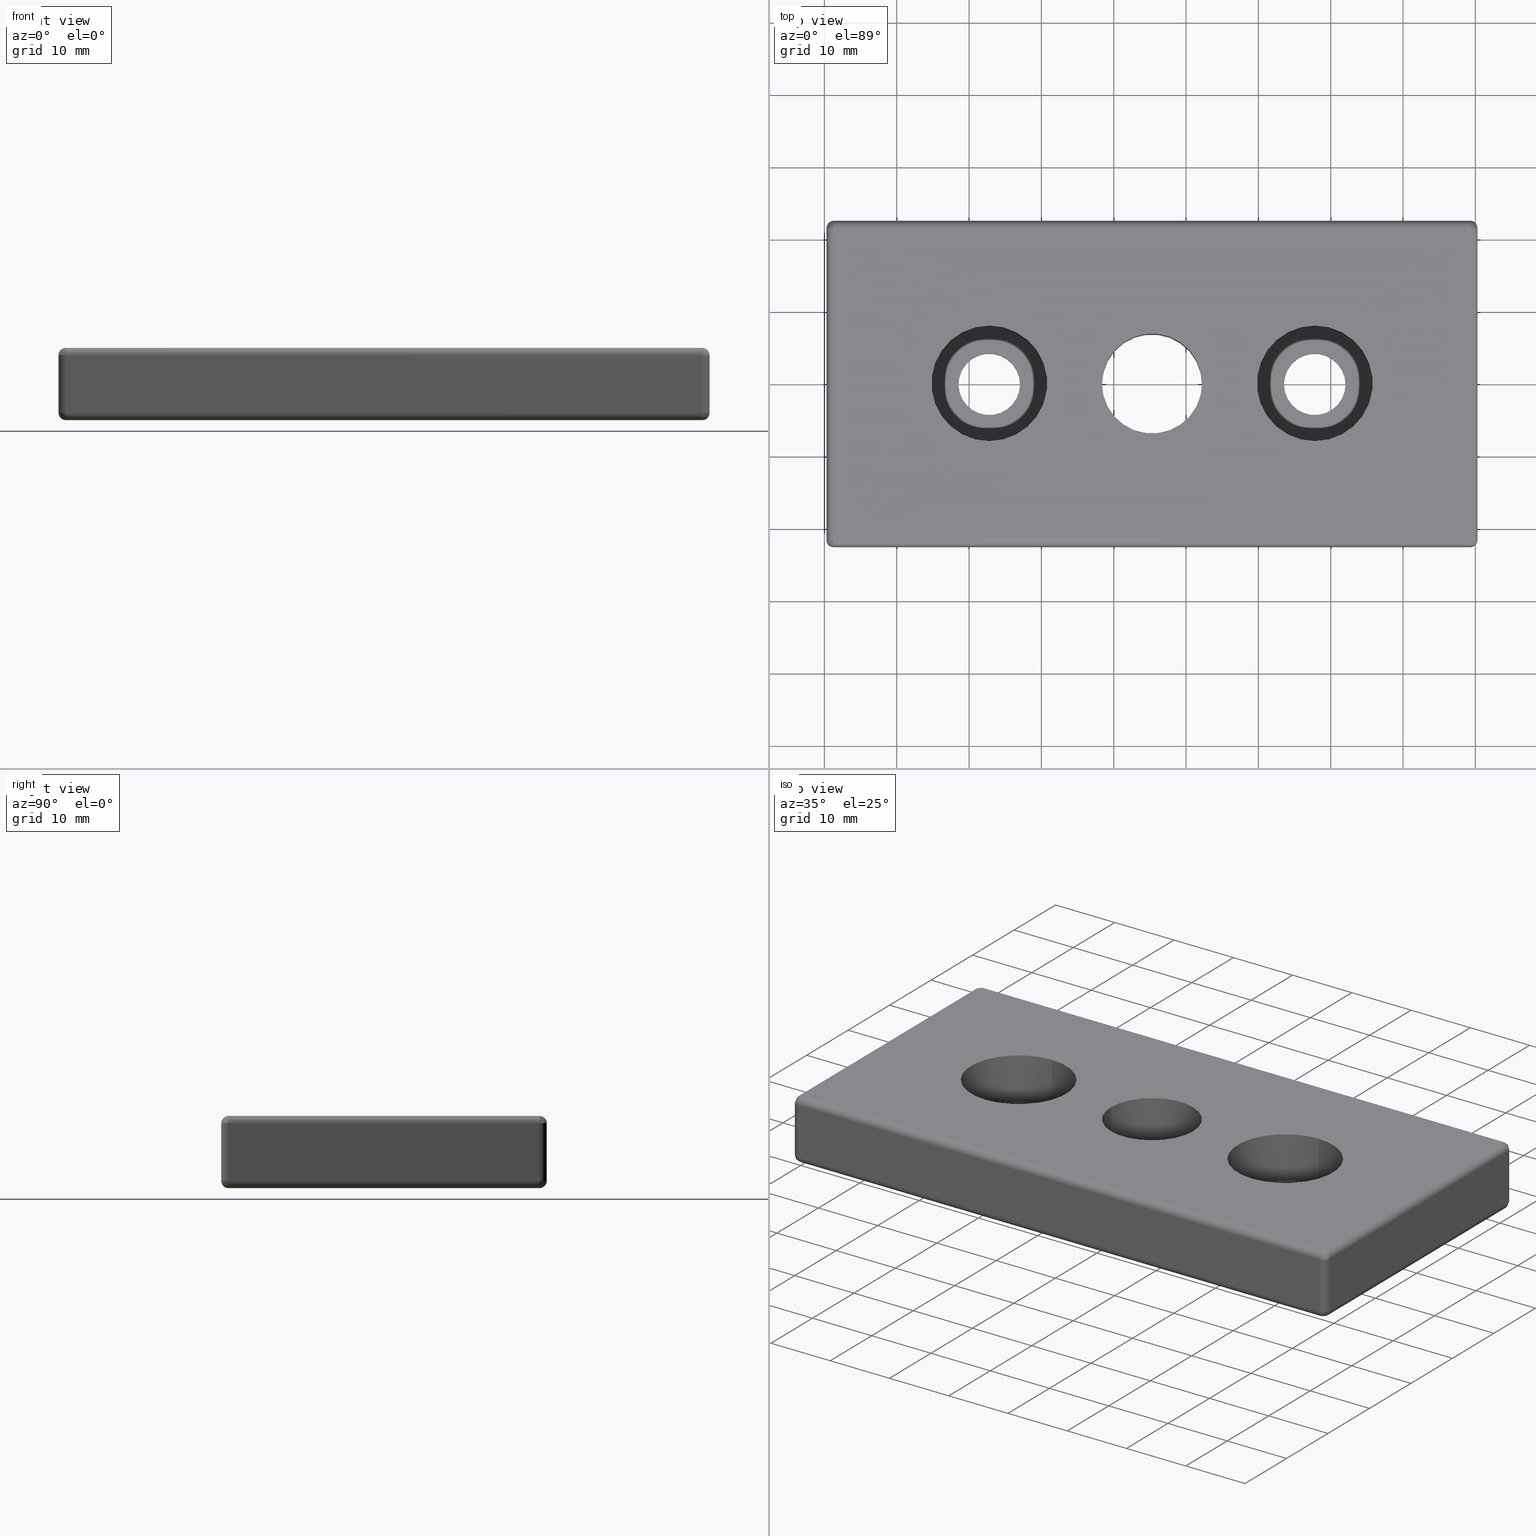
[diagram: canonical four-view strip — front | top / right | iso, engineering-drawing reading convention]
A machine part, canonical four-view strip (front | top / right | iso — engineering-drawing reading convention). The complete STEP part file that produces these views, byte-faithful:
ISO-10303-21;
HEADER;
/****************************************************************
 * Generated by software with PDE/Lib inside                    *
 * PDElib Version v4.4, created Mon 02/23/2004                  *
 * International Technegroup Inc. (www.iti-oh.com)              *
 ****************************************************************/
FILE_DESCRIPTION(('STEP AP203'),'2;1');
FILE_NAME('31.100.00.stp','2011-02-14T10:42:06',(''),(''),'2009.3.110','THINKDESIGN','');
FILE_SCHEMA(('CONFIG_CONTROL_DESIGN'));
ENDSEC;
DATA;
#2=CARTESIAN_POINT('',(-22.207106781186489,0.0,9.707106791186551));
#3=DIRECTION('',(0.0,0.0,-1.0));
#4=DIRECTION('',(-1.0,0.0,0.0));
#5=AXIS2_PLACEMENT_3D('',#2,#3,#4);
#6=CYLINDRICAL_SURFACE('',#5,8.0);
#7=CARTESIAN_POINT('',(-22.207106781186493,7.999999999999993,9.707106781186552));
#8=VERTEX_POINT('',#7);
#9=CARTESIAN_POINT('',(-22.207106781186493,-8.0,9.707106781186552));
#10=VERTEX_POINT('',#9);
#11=CARTESIAN_POINT('',(-22.207106781186493,0.0,9.707106781186552));
#12=DIRECTION('',(0.0,0.0,-1.0));
#13=DIRECTION('',(0.0,-1.0,0.0));
#14=AXIS2_PLACEMENT_3D('',#11,#12,#13);
#15=CIRCLE('',#14,8.0);
#16=EDGE_CURVE('',#8,#10,#15,.T.);
#17=ORIENTED_EDGE('',*,*,#16,.F.);
#18=CARTESIAN_POINT('',(-22.207106781186493,7.999999999999993,2.707106781186552));
#19=VERTEX_POINT('',#18);
#20=CARTESIAN_POINT('',(-22.207106781186493,7.999999999999993,9.707106781186552));
#21=DIRECTION('',(0.0,0.0,-1.0));
#22=VECTOR('',#21,7.0);
#23=LINE('',#20,#22);
#24=EDGE_CURVE('',#8,#19,#23,.T.);
#25=ORIENTED_EDGE('',*,*,#24,.T.);
#26=CARTESIAN_POINT('',(-22.207106781186493,-8.0,2.707106781186552));
#27=VERTEX_POINT('',#26);
#28=CARTESIAN_POINT('',(-22.207106781186493,0.0,2.707106781186552));
#29=DIRECTION('',(0.0,0.0,1.0));
#30=DIRECTION('',(0.0,-1.0,0.0));
#31=AXIS2_PLACEMENT_3D('',#28,#29,#30);
#32=CIRCLE('',#31,8.0);
#33=EDGE_CURVE('',#27,#19,#32,.T.);
#34=ORIENTED_EDGE('',*,*,#33,.F.);
#35=CARTESIAN_POINT('',(-22.207106781186493,-8.0,9.707106781186552));
#36=DIRECTION('',(0.0,0.0,-1.0));
#37=VECTOR('',#36,7.0);
#38=LINE('',#35,#37);
#39=EDGE_CURVE('',#10,#27,#38,.T.);
#40=ORIENTED_EDGE('',*,*,#39,.F.);
#41=EDGE_LOOP('',(#17,#25,#34,#40));
#42=FACE_OUTER_BOUND('',#41,.T.);
#43=ADVANCED_FACE('',(#42),#6,.F.);
#44=CARTESIAN_POINT('',(-22.207106781186489,0.0,-0.292893228813440));
#45=DIRECTION('',(0.0,0.0,1.0));
#46=DIRECTION('',(0.0,1.0,0.0));
#47=AXIS2_PLACEMENT_3D('',#44,#45,#46);
#48=CYLINDRICAL_SURFACE('',#47,4.250000000000000);
#49=CARTESIAN_POINT('',(-17.957106781186489,0.0,-0.292893218813443));
#50=VERTEX_POINT('',#49);
#51=CARTESIAN_POINT('',(-26.457106781186493,0.0,-0.292893218813443));
#52=VERTEX_POINT('',#51);
#53=CARTESIAN_POINT('',(-22.207106781186493,0.0,-0.292893218813443));
#54=DIRECTION('',(0.0,0.0,-1.0));
#55=DIRECTION('',(-1.0,0.0,0.0));
#56=AXIS2_PLACEMENT_3D('',#53,#54,#55);
#57=CIRCLE('',#56,4.250000000000000);
#58=EDGE_CURVE('',#50,#52,#57,.T.);
#59=ORIENTED_EDGE('',*,*,#58,.T.);
#60=CARTESIAN_POINT('',(-26.457106781186493,0.0,2.707106781186546));
#61=VERTEX_POINT('',#60);
#62=CARTESIAN_POINT('',(-26.457106781186493,0.0,-0.292893218813434));
#63=DIRECTION('',(0.0,0.0,1.0));
#64=VECTOR('',#63,2.999999999999981);
#65=LINE('',#62,#64);
#66=EDGE_CURVE('',#52,#61,#65,.T.);
#67=ORIENTED_EDGE('',*,*,#66,.T.);
#68=CARTESIAN_POINT('',(-17.957106781186489,0.0,2.707106781186546));
#69=VERTEX_POINT('',#68);
#70=CARTESIAN_POINT('',(-22.207106781186493,0.0,2.707106781186546));
#71=DIRECTION('',(0.0,0.0,1.0));
#72=DIRECTION('',(-1.0,0.0,0.0));
#73=AXIS2_PLACEMENT_3D('',#70,#71,#72);
#74=CIRCLE('',#73,4.250000000000000);
#75=EDGE_CURVE('',#61,#69,#74,.T.);
#76=ORIENTED_EDGE('',*,*,#75,.T.);
#77=CARTESIAN_POINT('',(-17.957106781186489,0.0,-0.292893218813434));
#78=DIRECTION('',(0.0,0.0,1.0));
#79=VECTOR('',#78,2.999999999999981);
#80=LINE('',#77,#79);
#81=EDGE_CURVE('',#50,#69,#80,.T.);
#82=ORIENTED_EDGE('',*,*,#81,.F.);
#83=EDGE_LOOP('',(#59,#67,#76,#82));
#84=FACE_OUTER_BOUND('',#83,.T.);
#85=ADVANCED_FACE('',(#84),#48,.F.);
#86=CARTESIAN_POINT('',(-67.207106781186496,0.0,9.707106791186551));
#87=DIRECTION('',(0.0,0.0,-1.0));
#88=DIRECTION('',(-1.0,0.0,0.0));
#89=AXIS2_PLACEMENT_3D('',#86,#87,#88);
#90=CYLINDRICAL_SURFACE('',#89,8.0);
#91=CARTESIAN_POINT('',(-67.207106781186496,7.999999999999993,9.707106781186552));
#92=VERTEX_POINT('',#91);
#93=CARTESIAN_POINT('',(-67.207106781186496,-8.0,9.707106781186552));
#94=VERTEX_POINT('',#93);
#95=CARTESIAN_POINT('',(-67.207106781186496,0.0,9.707106781186552));
#96=DIRECTION('',(0.0,0.0,-1.0));
#97=DIRECTION('',(0.0,-1.0,0.0));
#98=AXIS2_PLACEMENT_3D('',#95,#96,#97);
#99=CIRCLE('',#98,8.0);
#100=EDGE_CURVE('',#92,#94,#99,.T.);
#101=ORIENTED_EDGE('',*,*,#100,.F.);
#102=CARTESIAN_POINT('',(-67.207106781186496,7.999999999999993,2.707106781186552));
#103=VERTEX_POINT('',#102);
#104=CARTESIAN_POINT('',(-67.207106781186496,7.999999999999993,9.707106781186552));
#105=DIRECTION('',(0.0,0.0,-1.0));
#106=VECTOR('',#105,7.0);
#107=LINE('',#104,#106);
#108=EDGE_CURVE('',#92,#103,#107,.T.);
#109=ORIENTED_EDGE('',*,*,#108,.T.);
#110=CARTESIAN_POINT('',(-67.207106781186496,-8.0,2.707106781186552));
#111=VERTEX_POINT('',#110);
#112=CARTESIAN_POINT('',(-67.207106781186496,0.0,2.707106781186552));
#113=DIRECTION('',(0.0,0.0,1.0));
#114=DIRECTION('',(0.0,-1.0,0.0));
#115=AXIS2_PLACEMENT_3D('',#112,#113,#114);
#116=CIRCLE('',#115,8.0);
#117=EDGE_CURVE('',#111,#103,#116,.T.);
#118=ORIENTED_EDGE('',*,*,#117,.F.);
#119=CARTESIAN_POINT('',(-67.207106781186496,-8.0,9.707106781186552));
#120=DIRECTION('',(0.0,0.0,-1.0));
#121=VECTOR('',#120,7.0);
#122=LINE('',#119,#121);
#123=EDGE_CURVE('',#94,#111,#122,.T.);
#124=ORIENTED_EDGE('',*,*,#123,.F.);
#125=EDGE_LOOP('',(#101,#109,#118,#124));
#126=FACE_OUTER_BOUND('',#125,.T.);
#127=ADVANCED_FACE('',(#126),#90,.F.);
#128=CARTESIAN_POINT('',(-67.207106781186496,0.0,-0.292893228813440));
#129=DIRECTION('',(0.0,0.0,1.0));
#130=DIRECTION('',(0.0,1.0,0.0));
#131=AXIS2_PLACEMENT_3D('',#128,#129,#130);
#132=CYLINDRICAL_SURFACE('',#131,4.249999999999997);
#133=CARTESIAN_POINT('',(-62.957106781186489,0.0,-0.292893218813443));
#134=VERTEX_POINT('',#133);
#135=CARTESIAN_POINT('',(-71.457106781186496,0.0,-0.292893218813443));
#136=VERTEX_POINT('',#135);
#137=CARTESIAN_POINT('',(-67.207106781186496,0.0,-0.292893218813443));
#138=DIRECTION('',(0.0,0.0,-1.0));
#139=DIRECTION('',(-1.0,0.0,0.0));
#140=AXIS2_PLACEMENT_3D('',#137,#138,#139);
#141=CIRCLE('',#140,4.249999999999997);
#142=EDGE_CURVE('',#134,#136,#141,.T.);
#143=ORIENTED_EDGE('',*,*,#142,.T.);
#144=CARTESIAN_POINT('',(-71.457106781186496,0.0,2.707106781186546));
#145=VERTEX_POINT('',#144);
#146=CARTESIAN_POINT('',(-71.457106781186496,0.0,-0.292893218813434));
#147=DIRECTION('',(0.0,0.0,1.0));
#148=VECTOR('',#147,2.999999999999981);
#149=LINE('',#146,#148);
#150=EDGE_CURVE('',#136,#145,#149,.T.);
#151=ORIENTED_EDGE('',*,*,#150,.T.);
#152=CARTESIAN_POINT('',(-62.957106781186489,0.0,2.707106781186546));
#153=VERTEX_POINT('',#152);
#154=CARTESIAN_POINT('',(-67.207106781186496,0.0,2.707106781186546));
#155=DIRECTION('',(0.0,0.0,1.0));
#156=DIRECTION('',(-1.0,0.0,0.0));
#157=AXIS2_PLACEMENT_3D('',#154,#155,#156);
#158=CIRCLE('',#157,4.249999999999997);
#159=EDGE_CURVE('',#145,#153,#158,.T.);
#160=ORIENTED_EDGE('',*,*,#159,.T.);
#161=CARTESIAN_POINT('',(-62.957106781186489,0.0,-0.292893218813434));
#162=DIRECTION('',(0.0,0.0,1.0));
#163=VECTOR('',#162,2.999999999999981);
#164=LINE('',#161,#163);
#165=EDGE_CURVE('',#134,#153,#164,.T.);
#166=ORIENTED_EDGE('',*,*,#165,.F.);
#167=EDGE_LOOP('',(#143,#151,#160,#166));
#168=FACE_OUTER_BOUND('',#167,.T.);
#169=ADVANCED_FACE('',(#168),#132,.F.);
#170=CARTESIAN_POINT('',(-44.707106781186518,0.0,-0.292893228813440));
#171=DIRECTION('',(0.0,0.0,1.0));
#172=DIRECTION('',(0.0,1.0,0.0));
#173=AXIS2_PLACEMENT_3D('',#170,#171,#172);
#174=CYLINDRICAL_SURFACE('',#173,6.917500000000000);
#175=CARTESIAN_POINT('',(-37.789606781186521,0.0,-0.292893218813443));
#176=VERTEX_POINT('',#175);
#177=CARTESIAN_POINT('',(-51.624606781186515,0.0,-0.292893218813443));
#178=VERTEX_POINT('',#177);
#179=CARTESIAN_POINT('',(-44.707106781186518,0.0,-0.292893218813443));
#180=DIRECTION('',(0.0,0.0,-1.0));
#181=DIRECTION('',(-1.0,0.0,0.0));
#182=AXIS2_PLACEMENT_3D('',#179,#180,#181);
#183=CIRCLE('',#182,6.917500000000000);
#184=EDGE_CURVE('',#176,#178,#183,.T.);
#185=ORIENTED_EDGE('',*,*,#184,.T.);
#186=CARTESIAN_POINT('',(-51.624606781186515,0.0,9.707106781186552));
#187=VERTEX_POINT('',#186);
#188=CARTESIAN_POINT('',(-51.624606781186515,0.0,-0.292893218813449));
#189=DIRECTION('',(0.0,0.0,1.0));
#190=VECTOR('',#189,10.0);
#191=LINE('',#188,#190);
#192=EDGE_CURVE('',#178,#187,#191,.T.);
#193=ORIENTED_EDGE('',*,*,#192,.T.);
#194=CARTESIAN_POINT('',(-37.789606781186521,0.0,9.707106781186552));
#195=VERTEX_POINT('',#194);
#196=CARTESIAN_POINT('',(-44.707106781186518,0.0,9.707106781186552));
#197=DIRECTION('',(0.0,0.0,1.0));
#198=DIRECTION('',(0.0,1.0,0.0));
#199=AXIS2_PLACEMENT_3D('',#196,#197,#198);
#200=CIRCLE('',#199,6.917500000000000);
#201=EDGE_CURVE('',#187,#195,#200,.T.);
#202=ORIENTED_EDGE('',*,*,#201,.T.);
#203=CARTESIAN_POINT('',(-37.789606781186521,0.0,-0.292893218813449));
#204=DIRECTION('',(0.0,0.0,1.0));
#205=VECTOR('',#204,10.0);
#206=LINE('',#203,#205);
#207=EDGE_CURVE('',#176,#195,#206,.T.);
#208=ORIENTED_EDGE('',*,*,#207,.F.);
#209=EDGE_LOOP('',(#185,#193,#202,#208));
#210=FACE_OUTER_BOUND('',#209,.T.);
#211=ADVANCED_FACE('',(#210),#174,.F.);
#212=CARTESIAN_POINT('',(-93.107106781186474,-22.499999999999996,9.107106781186552));
#213=DIRECTION('',(0.0,-1.0,0.0));
#214=DIRECTION('',(0.0,0.0,-1.0));
#215=AXIS2_PLACEMENT_3D('',#212,#213,#214);
#216=PLANE('',#215);
#217=CARTESIAN_POINT('',(-0.707106781186550,-22.499999999999993,8.707106781186552));
#218=VERTEX_POINT('',#217);
#219=CARTESIAN_POINT('',(-88.707106781186482,-22.499999999999993,8.707106781186552));
#220=VERTEX_POINT('',#219);
#221=CARTESIAN_POINT('',(-0.707106781186546,-22.499999999999996,8.707106781186552));
#222=DIRECTION('',(-1.0,0.0,0.0));
#223=VECTOR('',#222,87.999999999999943);
#224=LINE('',#221,#223);
#225=EDGE_CURVE('',#218,#220,#224,.T.);
#226=ORIENTED_EDGE('',*,*,#225,.T.);
#227=CARTESIAN_POINT('',(-88.707106781186482,-22.499999999999993,0.707106781186550));
#228=VERTEX_POINT('',#227);
#229=CARTESIAN_POINT('',(-88.707106781186496,-22.499999999999996,8.707106781186552));
#230=DIRECTION('',(0.0,0.0,-1.0));
#231=VECTOR('',#230,8.000000000000004);
#232=LINE('',#229,#231);
#233=EDGE_CURVE('',#220,#228,#232,.T.);
#234=ORIENTED_EDGE('',*,*,#233,.T.);
#235=CARTESIAN_POINT('',(-0.707106781186546,-22.499999999999993,0.707106781186550));
#236=VERTEX_POINT('',#235);
#237=CARTESIAN_POINT('',(-88.707106781186496,-22.499999999999996,0.707106781186548));
#238=DIRECTION('',(1.0,0.0,0.0));
#239=VECTOR('',#238,87.999999999999943);
#240=LINE('',#237,#239);
#241=EDGE_CURVE('',#228,#236,#240,.T.);
#242=ORIENTED_EDGE('',*,*,#241,.T.);
#243=CARTESIAN_POINT('',(-0.707106781186550,-22.499999999999996,0.707106781186548));
#244=DIRECTION('',(0.0,0.0,1.0));
#245=VECTOR('',#244,8.000000000000004);
#246=LINE('',#243,#245);
#247=EDGE_CURVE('',#236,#218,#246,.T.);
#248=ORIENTED_EDGE('',*,*,#247,.T.);
#249=EDGE_LOOP('',(#226,#234,#242,#248));
#250=FACE_OUTER_BOUND('',#249,.T.);
#251=ADVANCED_FACE('',(#250),#216,.T.);
#252=CARTESIAN_POINT('',(0.292893218813450,-22.499999999999996,-0.292893218813449));
#253=DIRECTION('',(1.0,0.0,0.0));
#254=DIRECTION('',(0.0,1.0,0.0));
#255=AXIS2_PLACEMENT_3D('',#252,#253,#254);
#256=PLANE('',#255);
#257=CARTESIAN_POINT('',(0.292893218813507,21.499999999999993,8.707106781186552));
#258=VERTEX_POINT('',#257);
#259=CARTESIAN_POINT('',(0.292893218813450,-21.499999999999993,8.707106781186552));
#260=VERTEX_POINT('',#259);
#261=CARTESIAN_POINT('',(0.292893218813450,21.499999999999986,8.707106781186552));
#262=DIRECTION('',(0.0,-1.0,0.0));
#263=VECTOR('',#262,42.999999999999979);
#264=LINE('',#261,#263);
#265=EDGE_CURVE('',#258,#260,#264,.T.);
#266=ORIENTED_EDGE('',*,*,#265,.T.);
#267=CARTESIAN_POINT('',(0.292893218813450,-21.499999999999993,0.707106781186548));
#268=VERTEX_POINT('',#267);
#269=CARTESIAN_POINT('',(0.292893218813450,-21.499999999999993,8.707106781186552));
#270=DIRECTION('',(0.0,0.0,-1.0));
#271=VECTOR('',#270,8.000000000000004);
#272=LINE('',#269,#271);
#273=EDGE_CURVE('',#260,#268,#272,.T.);
#274=ORIENTED_EDGE('',*,*,#273,.T.);
#275=CARTESIAN_POINT('',(0.292893218813507,21.499999999999993,0.707106781186548));
#276=VERTEX_POINT('',#275);
#277=CARTESIAN_POINT('',(0.292893218813450,-21.499999999999993,0.707106781186548));
#278=DIRECTION('',(0.0,1.0,0.0));
#279=VECTOR('',#278,42.999999999999986);
#280=LINE('',#277,#279);
#281=EDGE_CURVE('',#268,#276,#280,.T.);
#282=ORIENTED_EDGE('',*,*,#281,.T.);
#283=CARTESIAN_POINT('',(0.292893218813507,21.499999999999993,0.707106781186548));
#284=DIRECTION('',(0.0,0.0,1.0));
#285=VECTOR('',#284,8.000000000000004);
#286=LINE('',#283,#285);
#287=EDGE_CURVE('',#276,#258,#286,.T.);
#288=ORIENTED_EDGE('',*,*,#287,.T.);
#289=EDGE_LOOP('',(#266,#274,#282,#288));
#290=FACE_OUTER_BOUND('',#289,.T.);
#291=ADVANCED_FACE('',(#290),#256,.T.);
#292=CARTESIAN_POINT('',(-93.107106781186502,22.499999999999993,0.307106781186548));
#293=DIRECTION('',(0.0,1.0,0.0));
#294=DIRECTION('',(0.0,0.0,1.0));
#295=AXIS2_PLACEMENT_3D('',#292,#293,#294);
#296=PLANE('',#295);
#297=CARTESIAN_POINT('',(-0.707106781186493,22.499999999999993,0.707106781186550));
#298=VERTEX_POINT('',#297);
#299=CARTESIAN_POINT('',(-88.707106781186482,22.499999999999993,0.707106781186550));
#300=VERTEX_POINT('',#299);
#301=CARTESIAN_POINT('',(-0.707106781186493,22.499999999999993,0.707106781186548));
#302=DIRECTION('',(-1.0,0.0,0.0));
#303=VECTOR('',#302,88.0);
#304=LINE('',#301,#303);
#305=EDGE_CURVE('',#298,#300,#304,.T.);
#306=ORIENTED_EDGE('',*,*,#305,.T.);
#307=CARTESIAN_POINT('',(-88.707106781186482,22.499999999999993,8.707106781186552));
#308=VERTEX_POINT('',#307);
#309=CARTESIAN_POINT('',(-88.707106781186496,22.499999999999993,0.707106781186548));
#310=DIRECTION('',(0.0,0.0,1.0));
#311=VECTOR('',#310,8.000000000000004);
#312=LINE('',#309,#311);
#313=EDGE_CURVE('',#300,#308,#312,.T.);
#314=ORIENTED_EDGE('',*,*,#313,.T.);
#315=CARTESIAN_POINT('',(-0.707106781186493,22.499999999999993,8.707106781186552));
#316=VERTEX_POINT('',#315);
#317=CARTESIAN_POINT('',(-88.707106781186496,22.499999999999993,8.707106781186552));
#318=DIRECTION('',(1.0,0.0,0.0));
#319=VECTOR('',#318,88.0);
#320=LINE('',#317,#319);
#321=EDGE_CURVE('',#308,#316,#320,.T.);
#322=ORIENTED_EDGE('',*,*,#321,.T.);
#323=CARTESIAN_POINT('',(-0.707106781186493,22.499999999999993,8.707106781186552));
#324=DIRECTION('',(0.0,0.0,-1.0));
#325=VECTOR('',#324,8.000000000000004);
#326=LINE('',#323,#325);
#327=EDGE_CURVE('',#316,#298,#326,.T.);
#328=ORIENTED_EDGE('',*,*,#327,.T.);
#329=EDGE_LOOP('',(#306,#314,#322,#328));
#330=FACE_OUTER_BOUND('',#329,.T.);
#331=ADVANCED_FACE('',(#330),#296,.T.);
#332=CARTESIAN_POINT('',(-89.707106781186496,-23.649999999999991,0.307106781186548));
#333=DIRECTION('',(-1.0,0.0,0.0));
#334=DIRECTION('',(0.0,0.0,1.0));
#335=AXIS2_PLACEMENT_3D('',#332,#333,#334);
#336=PLANE('',#335);
#337=CARTESIAN_POINT('',(-89.707106781186496,21.499999999999993,0.707106781186548));
#338=VERTEX_POINT('',#337);
#339=CARTESIAN_POINT('',(-89.707106781186496,-21.499999999999993,0.707106781186548));
#340=VERTEX_POINT('',#339);
#341=CARTESIAN_POINT('',(-89.707106781186496,21.499999999999993,0.707106781186548));
#342=DIRECTION('',(0.0,-1.0,0.0));
#343=VECTOR('',#342,42.999999999999986);
#344=LINE('',#341,#343);
#345=EDGE_CURVE('',#338,#340,#344,.T.);
#346=ORIENTED_EDGE('',*,*,#345,.T.);
#347=CARTESIAN_POINT('',(-89.707106781186496,-21.499999999999993,8.707106781186552));
#348=VERTEX_POINT('',#347);
#349=CARTESIAN_POINT('',(-89.707106781186496,-21.499999999999993,0.707106781186548));
#350=DIRECTION('',(0.0,0.0,1.0));
#351=VECTOR('',#350,8.000000000000004);
#352=LINE('',#349,#351);
#353=EDGE_CURVE('',#340,#348,#352,.T.);
#354=ORIENTED_EDGE('',*,*,#353,.T.);
#355=CARTESIAN_POINT('',(-89.707106781186496,21.499999999999993,8.707106781186552));
#356=VERTEX_POINT('',#355);
#357=CARTESIAN_POINT('',(-89.707106781186496,-21.499999999999993,8.707106781186552));
#358=DIRECTION('',(0.0,1.0,0.0));
#359=VECTOR('',#358,42.999999999999986);
#360=LINE('',#357,#359);
#361=EDGE_CURVE('',#348,#356,#360,.T.);
#362=ORIENTED_EDGE('',*,*,#361,.T.);
#363=CARTESIAN_POINT('',(-89.707106781186496,21.499999999999993,8.707106781186552));
#364=DIRECTION('',(0.0,0.0,-1.0));
#365=VECTOR('',#364,8.000000000000004);
#366=LINE('',#363,#365);
#367=EDGE_CURVE('',#356,#338,#366,.T.);
#368=ORIENTED_EDGE('',*,*,#367,.T.);
#369=EDGE_LOOP('',(#346,#354,#362,#368));
#370=FACE_OUTER_BOUND('',#369,.T.);
#371=ADVANCED_FACE('',(#370),#336,.T.);
#372=CARTESIAN_POINT('',(3.692893218813516,-23.649999999999991,-0.292893218813449));
#373=DIRECTION('',(0.0,0.0,-1.0));
#374=DIRECTION('',(-1.0,0.0,0.0));
#375=AXIS2_PLACEMENT_3D('',#372,#373,#374);
#376=PLANE('',#375);
#377=CARTESIAN_POINT('',(-0.707106781186550,-21.499999999999993,-0.292893218813449));
#378=VERTEX_POINT('',#377);
#379=CARTESIAN_POINT('',(-88.707106781186496,-21.499999999999993,-0.292893218813449));
#380=VERTEX_POINT('',#379);
#381=CARTESIAN_POINT('',(-0.707106781186546,-21.499999999999993,-0.292893218813449));
#382=DIRECTION('',(-1.0,0.0,0.0));
#383=VECTOR('',#382,87.999999999999943);
#384=LINE('',#381,#383);
#385=EDGE_CURVE('',#378,#380,#384,.T.);
#386=ORIENTED_EDGE('',*,*,#385,.T.);
#387=CARTESIAN_POINT('',(-88.707106781186496,21.499999999999993,-0.292893218813449));
#388=VERTEX_POINT('',#387);
#389=CARTESIAN_POINT('',(-88.707106781186496,-21.499999999999993,-0.292893218813449));
#390=DIRECTION('',(0.0,1.0,0.0));
#391=VECTOR('',#390,42.999999999999986);
#392=LINE('',#389,#391);
#393=EDGE_CURVE('',#380,#388,#392,.T.);
#394=ORIENTED_EDGE('',*,*,#393,.T.);
#395=CARTESIAN_POINT('',(-0.707106781186493,21.499999999999993,-0.292893218813449));
#396=VERTEX_POINT('',#395);
#397=CARTESIAN_POINT('',(-88.707106781186496,21.499999999999993,-0.292893218813449));
#398=DIRECTION('',(1.0,0.0,0.0));
#399=VECTOR('',#398,88.0);
#400=LINE('',#397,#399);
#401=EDGE_CURVE('',#388,#396,#400,.T.);
#402=ORIENTED_EDGE('',*,*,#401,.T.);
#403=CARTESIAN_POINT('',(-0.707106781186550,21.499999999999993,-0.292893218813449));
#404=DIRECTION('',(0.0,-1.0,0.0));
#405=VECTOR('',#404,42.999999999999986);
#406=LINE('',#403,#405);
#407=EDGE_CURVE('',#396,#378,#406,.T.);
#408=ORIENTED_EDGE('',*,*,#407,.T.);
#409=EDGE_LOOP('',(#386,#394,#402,#408));
#410=FACE_OUTER_BOUND('',#409,.T.);
#411=ORIENTED_EDGE('',*,*,#58,.F.);
#412=CARTESIAN_POINT('',(-22.207106781186493,0.0,-0.292893218813443));
#413=DIRECTION('',(0.0,0.0,-1.0));
#414=DIRECTION('',(-1.0,0.0,0.0));
#415=AXIS2_PLACEMENT_3D('',#412,#413,#414);
#416=CIRCLE('',#415,4.250000000000000);
#417=EDGE_CURVE('',#52,#50,#416,.T.);
#418=ORIENTED_EDGE('',*,*,#417,.F.);
#419=EDGE_LOOP('',(#411,#418));
#420=FACE_BOUND('',#419,.T.);
#421=ORIENTED_EDGE('',*,*,#142,.F.);
#422=CARTESIAN_POINT('',(-67.207106781186496,0.0,-0.292893218813443));
#423=DIRECTION('',(0.0,0.0,-1.0));
#424=DIRECTION('',(-1.0,0.0,0.0));
#425=AXIS2_PLACEMENT_3D('',#422,#423,#424);
#426=CIRCLE('',#425,4.249999999999997);
#427=EDGE_CURVE('',#136,#134,#426,.T.);
#428=ORIENTED_EDGE('',*,*,#427,.F.);
#429=EDGE_LOOP('',(#421,#428));
#430=FACE_BOUND('',#429,.T.);
#431=ORIENTED_EDGE('',*,*,#184,.F.);
#432=CARTESIAN_POINT('',(-44.707106781186518,0.0,-0.292893218813443));
#433=DIRECTION('',(0.0,0.0,-1.0));
#434=DIRECTION('',(-1.0,0.0,0.0));
#435=AXIS2_PLACEMENT_3D('',#432,#433,#434);
#436=CIRCLE('',#435,6.917500000000000);
#437=EDGE_CURVE('',#178,#176,#436,.T.);
#438=ORIENTED_EDGE('',*,*,#437,.F.);
#439=EDGE_LOOP('',(#431,#438));
#440=FACE_BOUND('',#439,.T.);
#441=ADVANCED_FACE('',(#410,#420,#430,#440),#376,.T.);
#442=CARTESIAN_POINT('',(3.692893218813516,-23.649999999999991,9.707106781186552));
#443=DIRECTION('',(0.0,0.0,-1.0));
#444=DIRECTION('',(-1.0,0.0,0.0));
#445=AXIS2_PLACEMENT_3D('',#442,#443,#444);
#446=PLANE('',#445);
#447=CARTESIAN_POINT('',(-88.707106781186496,21.499999999999993,9.707106781186552));
#448=VERTEX_POINT('',#447);
#449=CARTESIAN_POINT('',(-88.707106781186496,-21.499999999999993,9.707106781186552));
#450=VERTEX_POINT('',#449);
#451=CARTESIAN_POINT('',(-88.707106781186496,21.500000000000000,9.707106781186552));
#452=DIRECTION('',(0.0,-1.0,0.0));
#453=VECTOR('',#452,42.999999999999993);
#454=LINE('',#451,#453);
#455=EDGE_CURVE('',#448,#450,#454,.T.);
#456=ORIENTED_EDGE('',*,*,#455,.T.);
#457=CARTESIAN_POINT('',(-0.707106781186550,-21.499999999999993,9.707106781186552));
#458=VERTEX_POINT('',#457);
#459=CARTESIAN_POINT('',(-88.707106781186496,-21.499999999999993,9.707106781186552));
#460=DIRECTION('',(1.0,0.0,0.0));
#461=VECTOR('',#460,87.999999999999957);
#462=LINE('',#459,#461);
#463=EDGE_CURVE('',#450,#458,#462,.T.);
#464=ORIENTED_EDGE('',*,*,#463,.T.);
#465=CARTESIAN_POINT('',(-0.707106781186493,21.499999999999993,9.707106781186552));
#466=VERTEX_POINT('',#465);
#467=CARTESIAN_POINT('',(-0.707106781186493,-21.499999999999993,9.707106781186552));
#468=DIRECTION('',(0.0,1.0,0.0));
#469=VECTOR('',#468,42.999999999999986);
#470=LINE('',#467,#469);
#471=EDGE_CURVE('',#458,#466,#470,.T.);
#472=ORIENTED_EDGE('',*,*,#471,.T.);
#473=CARTESIAN_POINT('',(-0.707106781186489,21.499999999999993,9.707106781186552));
#474=DIRECTION('',(-1.0,0.0,0.0));
#475=VECTOR('',#474,88.0);
#476=LINE('',#473,#475);
#477=EDGE_CURVE('',#466,#448,#476,.T.);
#478=ORIENTED_EDGE('',*,*,#477,.T.);
#479=EDGE_LOOP('',(#456,#464,#472,#478));
#480=FACE_OUTER_BOUND('',#479,.T.);
#481=CARTESIAN_POINT('',(-22.207106781186493,0.0,9.707106781186552));
#482=DIRECTION('',(0.0,0.0,-1.0));
#483=DIRECTION('',(0.0,-1.0,0.0));
#484=AXIS2_PLACEMENT_3D('',#481,#482,#483);
#485=CIRCLE('',#484,8.0);
#486=EDGE_CURVE('',#10,#8,#485,.T.);
#487=ORIENTED_EDGE('',*,*,#486,.T.);
#488=ORIENTED_EDGE('',*,*,#16,.T.);
#489=EDGE_LOOP('',(#487,#488));
#490=FACE_BOUND('',#489,.T.);
#491=CARTESIAN_POINT('',(-67.207106781186496,0.0,9.707106781186552));
#492=DIRECTION('',(0.0,0.0,-1.0));
#493=DIRECTION('',(0.0,-1.0,0.0));
#494=AXIS2_PLACEMENT_3D('',#491,#492,#493);
#495=CIRCLE('',#494,8.0);
#496=EDGE_CURVE('',#94,#92,#495,.T.);
#497=ORIENTED_EDGE('',*,*,#496,.T.);
#498=ORIENTED_EDGE('',*,*,#100,.T.);
#499=EDGE_LOOP('',(#497,#498));
#500=FACE_BOUND('',#499,.T.);
#501=CARTESIAN_POINT('',(-44.707106781186518,0.0,9.707106781186552));
#502=DIRECTION('',(0.0,0.0,1.0));
#503=DIRECTION('',(0.0,1.0,0.0));
#504=AXIS2_PLACEMENT_3D('',#501,#502,#503);
#505=CIRCLE('',#504,6.917500000000000);
#506=EDGE_CURVE('',#195,#187,#505,.T.);
#507=ORIENTED_EDGE('',*,*,#506,.F.);
#508=ORIENTED_EDGE('',*,*,#201,.F.);
#509=EDGE_LOOP('',(#507,#508));
#510=FACE_BOUND('',#509,.T.);
#511=ADVANCED_FACE('',(#480,#490,#500,#510),#446,.F.);
#512=CARTESIAN_POINT('',(-44.707106781186518,0.0,-0.292893228813440));
#513=DIRECTION('',(0.0,0.0,1.0));
#514=DIRECTION('',(0.0,-1.0,0.0));
#515=AXIS2_PLACEMENT_3D('',#512,#513,#514);
#516=CYLINDRICAL_SURFACE('',#515,6.917500000000000);
#517=ORIENTED_EDGE('',*,*,#192,.F.);
#518=ORIENTED_EDGE('',*,*,#437,.T.);
#519=ORIENTED_EDGE('',*,*,#207,.T.);
#520=ORIENTED_EDGE('',*,*,#506,.T.);
#521=EDGE_LOOP('',(#517,#518,#519,#520));
#522=FACE_OUTER_BOUND('',#521,.T.);
#523=ADVANCED_FACE('',(#522),#516,.F.);
#524=CARTESIAN_POINT('',(-67.207106781186496,0.0,-0.292893228813440));
#525=DIRECTION('',(0.0,0.0,1.0));
#526=DIRECTION('',(0.0,-1.0,0.0));
#527=AXIS2_PLACEMENT_3D('',#524,#525,#526);
#528=CYLINDRICAL_SURFACE('',#527,4.249999999999997);
#529=ORIENTED_EDGE('',*,*,#150,.F.);
#530=ORIENTED_EDGE('',*,*,#427,.T.);
#531=ORIENTED_EDGE('',*,*,#165,.T.);
#532=CARTESIAN_POINT('',(-67.207106781186496,0.0,2.707106781186546));
#533=DIRECTION('',(0.0,0.0,1.0));
#534=DIRECTION('',(-1.0,0.0,0.0));
#535=AXIS2_PLACEMENT_3D('',#532,#533,#534);
#536=CIRCLE('',#535,4.249999999999997);
#537=EDGE_CURVE('',#153,#145,#536,.T.);
#538=ORIENTED_EDGE('',*,*,#537,.T.);
#539=EDGE_LOOP('',(#529,#530,#531,#538));
#540=FACE_OUTER_BOUND('',#539,.T.);
#541=ADVANCED_FACE('',(#540),#528,.F.);
#542=CARTESIAN_POINT('',(-58.407106781186492,-8.800000000000001,2.707106781186552));
#543=DIRECTION('',(0.0,0.0,-1.0));
#544=DIRECTION('',(-1.0,0.0,0.0));
#545=AXIS2_PLACEMENT_3D('',#542,#543,#544);
#546=PLANE('',#545);
#547=ORIENTED_EDGE('',*,*,#117,.T.);
#548=CARTESIAN_POINT('',(-67.207106781186496,0.0,2.707106781186552));
#549=DIRECTION('',(0.0,0.0,1.0));
#550=DIRECTION('',(0.0,-1.0,0.0));
#551=AXIS2_PLACEMENT_3D('',#548,#549,#550);
#552=CIRCLE('',#551,8.0);
#553=EDGE_CURVE('',#103,#111,#552,.T.);
#554=ORIENTED_EDGE('',*,*,#553,.T.);
#555=EDGE_LOOP('',(#547,#554));
#556=FACE_OUTER_BOUND('',#555,.T.);
#557=ORIENTED_EDGE('',*,*,#537,.F.);
#558=ORIENTED_EDGE('',*,*,#159,.F.);
#559=EDGE_LOOP('',(#557,#558));
#560=FACE_BOUND('',#559,.T.);
#561=ADVANCED_FACE('',(#556,#560),#546,.F.);
#562=CARTESIAN_POINT('',(-67.207106781186496,0.0,9.707106791186551));
#563=DIRECTION('',(0.0,0.0,-1.0));
#564=DIRECTION('',(1.0,0.0,0.0));
#565=AXIS2_PLACEMENT_3D('',#562,#563,#564);
#566=CYLINDRICAL_SURFACE('',#565,8.0);
#567=ORIENTED_EDGE('',*,*,#108,.F.);
#568=ORIENTED_EDGE('',*,*,#496,.F.);
#569=ORIENTED_EDGE('',*,*,#123,.T.);
#570=ORIENTED_EDGE('',*,*,#553,.F.);
#571=EDGE_LOOP('',(#567,#568,#569,#570));
#572=FACE_OUTER_BOUND('',#571,.T.);
#573=ADVANCED_FACE('',(#572),#566,.F.);
#574=CARTESIAN_POINT('',(-22.207106781186489,0.0,-0.292893228813440));
#575=DIRECTION('',(0.0,0.0,1.0));
#576=DIRECTION('',(0.0,-1.0,0.0));
#577=AXIS2_PLACEMENT_3D('',#574,#575,#576);
#578=CYLINDRICAL_SURFACE('',#577,4.250000000000000);
#579=ORIENTED_EDGE('',*,*,#66,.F.);
#580=ORIENTED_EDGE('',*,*,#417,.T.);
#581=ORIENTED_EDGE('',*,*,#81,.T.);
#582=CARTESIAN_POINT('',(-22.207106781186493,0.0,2.707106781186546));
#583=DIRECTION('',(0.0,0.0,1.0));
#584=DIRECTION('',(-1.0,0.0,0.0));
#585=AXIS2_PLACEMENT_3D('',#582,#583,#584);
#586=CIRCLE('',#585,4.250000000000000);
#587=EDGE_CURVE('',#69,#61,#586,.T.);
#588=ORIENTED_EDGE('',*,*,#587,.T.);
#589=EDGE_LOOP('',(#579,#580,#581,#588));
#590=FACE_OUTER_BOUND('',#589,.T.);
#591=ADVANCED_FACE('',(#590),#578,.F.);
#592=CARTESIAN_POINT('',(-13.407106781186490,-8.800000000000001,2.707106781186552));
#593=DIRECTION('',(0.0,0.0,-1.0));
#594=DIRECTION('',(-1.0,0.0,0.0));
#595=AXIS2_PLACEMENT_3D('',#592,#593,#594);
#596=PLANE('',#595);
#597=ORIENTED_EDGE('',*,*,#33,.T.);
#598=CARTESIAN_POINT('',(-22.207106781186493,0.0,2.707106781186552));
#599=DIRECTION('',(0.0,0.0,1.0));
#600=DIRECTION('',(0.0,-1.0,0.0));
#601=AXIS2_PLACEMENT_3D('',#598,#599,#600);
#602=CIRCLE('',#601,8.0);
#603=EDGE_CURVE('',#19,#27,#602,.T.);
#604=ORIENTED_EDGE('',*,*,#603,.T.);
#605=EDGE_LOOP('',(#597,#604));
#606=FACE_OUTER_BOUND('',#605,.T.);
#607=ORIENTED_EDGE('',*,*,#587,.F.);
#608=ORIENTED_EDGE('',*,*,#75,.F.);
#609=EDGE_LOOP('',(#607,#608));
#610=FACE_BOUND('',#609,.T.);
#611=ADVANCED_FACE('',(#606,#610),#596,.F.);
#612=CARTESIAN_POINT('',(-22.207106781186489,0.0,9.707106791186551));
#613=DIRECTION('',(0.0,0.0,-1.0));
#614=DIRECTION('',(1.0,0.0,0.0));
#615=AXIS2_PLACEMENT_3D('',#612,#613,#614);
#616=CYLINDRICAL_SURFACE('',#615,8.0);
#617=ORIENTED_EDGE('',*,*,#24,.F.);
#618=ORIENTED_EDGE('',*,*,#486,.F.);
#619=ORIENTED_EDGE('',*,*,#39,.T.);
#620=ORIENTED_EDGE('',*,*,#603,.F.);
#621=EDGE_LOOP('',(#617,#618,#619,#620));
#622=FACE_OUTER_BOUND('',#621,.T.);
#623=ADVANCED_FACE('',(#622),#616,.F.);
#624=CARTESIAN_POINT('',(-0.707106781186493,21.500000000000000,0.707106771186548));
#625=DIRECTION('',(0.0,0.0,1.0));
#626=DIRECTION('',(-0.707106781186547,-0.707106781186548,0.0));
#627=AXIS2_PLACEMENT_3D('',#624,#625,#626);
#628=CYLINDRICAL_SURFACE('',#627,1.000000000000001);
#629=CARTESIAN_POINT('',(-0.707106781186493,21.499999999999993,0.707106781186548));
#630=DIRECTION('',(0.0,0.0,-1.0));
#631=DIRECTION('',(-1.0,0.0,0.0));
#632=AXIS2_PLACEMENT_3D('',#629,#630,#631);
#633=CIRCLE('',#632,1.000000000000001);
#634=EDGE_CURVE('',#298,#276,#633,.T.);
#635=ORIENTED_EDGE('',*,*,#634,.F.);
#636=ORIENTED_EDGE('',*,*,#327,.F.);
#637=CARTESIAN_POINT('',(-0.707106781186493,21.499999999999993,8.707106781186552));
#638=DIRECTION('',(0.0,0.0,1.0));
#639=DIRECTION('',(1.0,0.0,0.0));
#640=AXIS2_PLACEMENT_3D('',#637,#638,#639);
#641=CIRCLE('',#640,1.000000000000001);
#642=EDGE_CURVE('',#258,#316,#641,.T.);
#643=ORIENTED_EDGE('',*,*,#642,.F.);
#644=ORIENTED_EDGE('',*,*,#287,.F.);
#645=EDGE_LOOP('',(#635,#636,#643,#644));
#646=FACE_OUTER_BOUND('',#645,.T.);
#647=ADVANCED_FACE('',(#646),#628,.T.);
#648=CARTESIAN_POINT('',(0.292893218813499,21.499999971715706,0.707106847460719));
#649=CARTESIAN_POINT('',(0.292893246265162,21.499999971715706,0.292893246265114));
#650=CARTESIAN_POINT('',(4.945515E-014,21.499999971715710,2.828430E-016));
#651=CARTESIAN_POINT('',(-0.292893246265064,21.499999971715710,-0.292893246265114));
#652=CARTESIAN_POINT('',(-0.707106847460669,21.499999971715699,-0.292893218813450));
#653=CARTESIAN_POINT('',(0.292893218813500,22.500000028284255,0.707106847460720));
#654=CARTESIAN_POINT('',(0.292893246265163,22.500000028284258,0.292893246265114));
#655=CARTESIAN_POINT('',(5.329071E-014,22.500000028284262,0.0));
#656=CARTESIAN_POINT('',(-0.292893246265063,22.500000028284258,-0.292893246265114));
#657=CARTESIAN_POINT('',(-0.707106847460669,22.500000028284258,-0.292893218813450));
#658=CARTESIAN_POINT('',(-0.707106809470767,22.499999999999989,0.707106781186546));
#659=CARTESIAN_POINT('',(-0.707106809470768,22.499999999999989,0.707106792902276));
#660=CARTESIAN_POINT('',(-0.707106801186496,22.499999999999989,0.707106801186548));
#661=CARTESIAN_POINT('',(-0.707106792902224,22.499999999999993,0.707106809470820));
#662=CARTESIAN_POINT('',(-0.707106781186494,22.499999999999993,0.707106809470819));
#670=(BOUNDED_SURFACE()B_SPLINE_SURFACE(2,2,((#648,#653,#658),(#649,#654,#659),(#650,#655,#660),(#651,#656,#661),(#652,#657,#662)),.UNSPECIFIED.,.F.,.F.,.U.)B_SPLINE_SURFACE_WITH_KNOTS((3,2,3),(3,3),(0.374999990000000,0.500000000000000,0.625000010000000),(0.499999989999995,1.000000010000000),.UNSPECIFIED.)GEOMETRIC_REPRESENTATION_ITEM()RATIONAL_B_SPLINE_SURFACE(((0.853553380593270,0.603553385593275,0.853553400593275),(0.853553368877540,0.603553377309003,0.853553388877545),(0.999999988284266,0.707106775328683,1.000000011715729),(0.853553368877540,0.603553377309002,0.853553388877545),(0.853553380593270,0.603553385593275,0.853553400593275)))REPRESENTATION_ITEM('')SURFACE());
#671=ORIENTED_EDGE('',*,*,#634,.T.);
#672=CARTESIAN_POINT('',(-0.707106781186493,21.499999999999993,0.707106781186548));
#673=DIRECTION('',(0.0,-1.0,0.0));
#674=DIRECTION('',(0.0,0.0,1.0));
#675=AXIS2_PLACEMENT_3D('',#672,#673,#674);
#676=CIRCLE('',#675,1.000000000000001);
#677=EDGE_CURVE('',#396,#276,#676,.T.);
#678=ORIENTED_EDGE('',*,*,#677,.F.);
#679=CARTESIAN_POINT('',(-0.707106781186493,21.499999999999993,0.707106781186548));
#680=DIRECTION('',(-1.0,0.0,0.0));
#681=DIRECTION('',(0.0,0.0,-1.0));
#682=AXIS2_PLACEMENT_3D('',#679,#680,#681);
#683=CIRCLE('',#682,1.000000000000001);
#684=EDGE_CURVE('',#298,#396,#683,.T.);
#685=ORIENTED_EDGE('',*,*,#684,.F.);
#686=EDGE_LOOP('',(#671,#678,#685));
#687=FACE_OUTER_BOUND('',#686,.T.);
#688=ADVANCED_FACE('',(#687),#670,.T.);
#689=CARTESIAN_POINT('',(-0.707106847460670,21.499999971715713,9.707106781186552));
#690=CARTESIAN_POINT('',(-0.292893246265064,21.499999971715710,9.707106808638214));
#691=CARTESIAN_POINT('',(4.945515E-014,21.499999971715706,9.414213562373099));
#692=CARTESIAN_POINT('',(0.292893246265162,21.499999971715710,9.121320316107987));
#693=CARTESIAN_POINT('',(0.292893218813499,21.499999971715713,8.707106714912385));
#694=CARTESIAN_POINT('',(-0.707106847460670,22.500000028284258,9.707106781186550));
#695=CARTESIAN_POINT('',(-0.292893246265063,22.500000028284258,9.707106808638214));
#696=CARTESIAN_POINT('',(5.329071E-014,22.500000028284262,9.414213562373099));
#697=CARTESIAN_POINT('',(0.292893246265163,22.500000028284258,9.121320316107987));
#698=CARTESIAN_POINT('',(0.292893218813500,22.500000028284255,8.707106714912380));
#699=CARTESIAN_POINT('',(-0.707106781186494,22.499999999999989,8.707106752902279));
#700=CARTESIAN_POINT('',(-0.707106792902224,22.499999999999989,8.707106752902277));
#701=CARTESIAN_POINT('',(-0.707106801186496,22.499999999999989,8.707106761186550));
#702=CARTESIAN_POINT('',(-0.707106809470768,22.499999999999989,8.707106769470823));
#703=CARTESIAN_POINT('',(-0.707106809470767,22.499999999999993,8.707106781186553));
#711=(BOUNDED_SURFACE()B_SPLINE_SURFACE(2,2,((#689,#694,#699),(#690,#695,#700),(#691,#696,#701),(#692,#697,#702),(#693,#698,#703)),.UNSPECIFIED.,.F.,.F.,.U.)B_SPLINE_SURFACE_WITH_KNOTS((3,2,3),(3,3),(0.374999990000000,0.500000000000000,0.625000010000000),(0.499999989999995,1.000000010000000),.UNSPECIFIED.)GEOMETRIC_REPRESENTATION_ITEM()RATIONAL_B_SPLINE_SURFACE(((0.853553380593269,0.603553385593275,0.853553400593275),(0.853553368877539,0.603553377309002,0.853553388877545),(0.999999988284265,0.707106775328683,1.000000011715729),(0.853553368877540,0.603553377309003,0.853553388877545),(0.853553380593269,0.603553385593275,0.853553400593275)))REPRESENTATION_ITEM('')SURFACE());
#712=CARTESIAN_POINT('',(-0.707106781186493,21.499999999999993,8.707106781186552));
#713=DIRECTION('',(-1.0,0.0,0.0));
#714=DIRECTION('',(0.0,0.0,-1.0));
#715=AXIS2_PLACEMENT_3D('',#712,#713,#714);
#716=CIRCLE('',#715,1.0);
#717=EDGE_CURVE('',#466,#316,#716,.T.);
#718=ORIENTED_EDGE('',*,*,#717,.F.);
#719=CARTESIAN_POINT('',(-0.707106781186493,21.499999999999993,8.707106781186552));
#720=DIRECTION('',(0.0,-1.0,0.0));
#721=DIRECTION('',(0.0,0.0,1.0));
#722=AXIS2_PLACEMENT_3D('',#719,#720,#721);
#723=CIRCLE('',#722,1.0);
#724=EDGE_CURVE('',#258,#466,#723,.T.);
#725=ORIENTED_EDGE('',*,*,#724,.F.);
#726=ORIENTED_EDGE('',*,*,#642,.T.);
#727=EDGE_LOOP('',(#718,#725,#726));
#728=FACE_OUTER_BOUND('',#727,.T.);
#729=ADVANCED_FACE('',(#728),#711,.T.);
#730=CARTESIAN_POINT('',(-0.707106781186550,-21.500000009999994,0.707106781186548));
#731=DIRECTION('',(0.0,1.0,0.0));
#732=DIRECTION('',(-1.0,0.0,0.0));
#733=AXIS2_PLACEMENT_3D('',#730,#731,#732);
#734=CYLINDRICAL_SURFACE('',#733,1.000000000000001);
#735=ORIENTED_EDGE('',*,*,#677,.T.);
#736=ORIENTED_EDGE('',*,*,#281,.F.);
#737=CARTESIAN_POINT('',(-0.707106781186550,-21.499999999999993,0.707106781186548));
#738=DIRECTION('',(0.0,-1.0,0.0));
#739=DIRECTION('',(0.0,0.0,-1.0));
#740=AXIS2_PLACEMENT_3D('',#737,#738,#739);
#741=CIRCLE('',#740,1.000000000000001);
#742=EDGE_CURVE('',#378,#268,#741,.T.);
#743=ORIENTED_EDGE('',*,*,#742,.F.);
#744=ORIENTED_EDGE('',*,*,#407,.F.);
#745=EDGE_LOOP('',(#735,#736,#743,#744));
#746=FACE_OUTER_BOUND('',#745,.T.);
#747=ADVANCED_FACE('',(#746),#734,.T.);
#748=CARTESIAN_POINT('',(-0.707106771186489,21.499999999999993,0.707106781186548));
#749=DIRECTION('',(-1.0,0.0,0.0));
#750=DIRECTION('',(0.0,0.0,1.0));
#751=AXIS2_PLACEMENT_3D('',#748,#749,#750);
#752=CYLINDRICAL_SURFACE('',#751,1.000000000000001);
#753=ORIENTED_EDGE('',*,*,#684,.T.);
#754=ORIENTED_EDGE('',*,*,#401,.F.);
#755=CARTESIAN_POINT('',(-88.707106781186496,21.499999999999993,0.707106781186548));
#756=DIRECTION('',(-1.0,0.0,0.0));
#757=DIRECTION('',(0.0,0.0,1.0));
#758=AXIS2_PLACEMENT_3D('',#755,#756,#757);
#759=CIRCLE('',#758,1.000000000000001);
#760=EDGE_CURVE('',#300,#388,#759,.T.);
#761=ORIENTED_EDGE('',*,*,#760,.F.);
#762=ORIENTED_EDGE('',*,*,#305,.F.);
#763=EDGE_LOOP('',(#753,#754,#761,#762));
#764=FACE_OUTER_BOUND('',#763,.T.);
#765=ADVANCED_FACE('',(#764),#752,.T.);
#766=CARTESIAN_POINT('',(-88.707106781186496,21.499999999999993,0.707106771186548));
#767=DIRECTION('',(0.0,0.0,1.0));
#768=DIRECTION('',(1.0,0.0,0.0));
#769=AXIS2_PLACEMENT_3D('',#766,#767,#768);
#770=CYLINDRICAL_SURFACE('',#769,1.000000000000001);
#771=CARTESIAN_POINT('',(-88.707106781186496,21.499999999999993,8.707106781186552));
#772=DIRECTION('',(0.0,0.0,1.0));
#773=DIRECTION('',(1.0,0.0,0.0));
#774=AXIS2_PLACEMENT_3D('',#771,#772,#773);
#775=CIRCLE('',#774,1.000000000000001);
#776=EDGE_CURVE('',#308,#356,#775,.T.);
#777=ORIENTED_EDGE('',*,*,#776,.F.);
#778=ORIENTED_EDGE('',*,*,#313,.F.);
#779=CARTESIAN_POINT('',(-88.707106781186496,21.499999999999993,0.707106781186548));
#780=DIRECTION('',(0.0,0.0,-1.0));
#781=DIRECTION('',(-1.0,0.0,0.0));
#782=AXIS2_PLACEMENT_3D('',#779,#780,#781);
#783=CIRCLE('',#782,1.000000000000001);
#784=EDGE_CURVE('',#338,#300,#783,.T.);
#785=ORIENTED_EDGE('',*,*,#784,.F.);
#786=ORIENTED_EDGE('',*,*,#367,.F.);
#787=EDGE_LOOP('',(#777,#778,#785,#786));
#788=FACE_OUTER_BOUND('',#787,.T.);
#789=ADVANCED_FACE('',(#788),#770,.T.);
#790=CARTESIAN_POINT('',(-88.707106791186490,21.499999999999993,8.707106781186552));
#791=DIRECTION('',(1.0,0.0,0.0));
#792=DIRECTION('',(0.0,0.0,-1.0));
#793=AXIS2_PLACEMENT_3D('',#790,#791,#792);
#794=CYLINDRICAL_SURFACE('',#793,1.0);
#795=ORIENTED_EDGE('',*,*,#717,.T.);
#796=ORIENTED_EDGE('',*,*,#321,.F.);
#797=CARTESIAN_POINT('',(-88.707106781186496,21.499999999999993,8.707106781186552));
#798=DIRECTION('',(-1.0,0.0,0.0));
#799=DIRECTION('',(0.0,0.0,1.0));
#800=AXIS2_PLACEMENT_3D('',#797,#798,#799);
#801=CIRCLE('',#800,1.0);
#802=EDGE_CURVE('',#448,#308,#801,.T.);
#803=ORIENTED_EDGE('',*,*,#802,.F.);
#804=ORIENTED_EDGE('',*,*,#477,.F.);
#805=EDGE_LOOP('',(#795,#796,#803,#804));
#806=FACE_OUTER_BOUND('',#805,.T.);
#807=ADVANCED_FACE('',(#806),#794,.T.);
#808=CARTESIAN_POINT('',(-0.707106781186553,21.500000009999994,8.707106781186552));
#809=DIRECTION('',(0.0,-1.0,0.0));
#810=DIRECTION('',(-0.707106781186547,0.0,-0.707106781186548));
#811=AXIS2_PLACEMENT_3D('',#808,#809,#810);
#812=CYLINDRICAL_SURFACE('',#811,1.000000000000001);
#813=ORIENTED_EDGE('',*,*,#724,.T.);
#814=ORIENTED_EDGE('',*,*,#471,.F.);
#815=CARTESIAN_POINT('',(-0.707106781186550,-21.499999999999993,8.707106781186552));
#816=DIRECTION('',(0.0,-1.0,0.0));
#817=DIRECTION('',(0.0,0.0,-1.0));
#818=AXIS2_PLACEMENT_3D('',#815,#816,#817);
#819=CIRCLE('',#818,1.0);
#820=EDGE_CURVE('',#260,#458,#819,.T.);
#821=ORIENTED_EDGE('',*,*,#820,.F.);
#822=ORIENTED_EDGE('',*,*,#265,.F.);
#823=EDGE_LOOP('',(#813,#814,#821,#822));
#824=FACE_OUTER_BOUND('',#823,.T.);
#825=ADVANCED_FACE('',(#824),#812,.T.);
#826=CARTESIAN_POINT('',(-0.707106781186550,-21.499999999999993,0.707106771186548));
#827=DIRECTION('',(0.0,0.0,1.0));
#828=DIRECTION('',(-0.707106781186547,0.707106781186548,0.0));
#829=AXIS2_PLACEMENT_3D('',#826,#827,#828);
#830=CYLINDRICAL_SURFACE('',#829,1.000000000000001);
#831=CARTESIAN_POINT('',(-0.707106781186550,-21.499999999999993,0.707106781186548));
#832=DIRECTION('',(0.0,0.0,-1.0));
#833=DIRECTION('',(-1.0,0.0,0.0));
#834=AXIS2_PLACEMENT_3D('',#831,#832,#833);
#835=CIRCLE('',#834,1.000000000000001);
#836=EDGE_CURVE('',#268,#236,#835,.T.);
#837=ORIENTED_EDGE('',*,*,#836,.F.);
#838=ORIENTED_EDGE('',*,*,#273,.F.);
#839=CARTESIAN_POINT('',(-0.707106781186550,-21.499999999999993,8.707106781186552));
#840=DIRECTION('',(0.0,0.0,1.0));
#841=DIRECTION('',(1.0,0.0,0.0));
#842=AXIS2_PLACEMENT_3D('',#839,#840,#841);
#843=CIRCLE('',#842,1.000000000000001);
#844=EDGE_CURVE('',#218,#260,#843,.T.);
#845=ORIENTED_EDGE('',*,*,#844,.F.);
#846=ORIENTED_EDGE('',*,*,#247,.F.);
#847=EDGE_LOOP('',(#837,#838,#845,#846));
#848=FACE_OUTER_BOUND('',#847,.T.);
#849=ADVANCED_FACE('',(#848),#830,.T.);
#850=CARTESIAN_POINT('',(-0.707106809470822,-22.499999999999986,0.707106781186546));
#851=CARTESIAN_POINT('',(-0.707106809470823,-22.499999999999986,0.707106792902276));
#852=CARTESIAN_POINT('',(-0.707106801186553,-22.499999999999986,0.707106801186548));
#853=CARTESIAN_POINT('',(-0.707106792902280,-22.499999999999989,0.707106809470820));
#854=CARTESIAN_POINT('',(-0.707106781186550,-22.499999999999986,0.707106809470819));
#855=CARTESIAN_POINT('',(0.292893218813441,-22.500000028284258,0.707106847460721));
#856=CARTESIAN_POINT('',(0.292893246265105,-22.500000028284258,0.292893246265115));
#857=CARTESIAN_POINT('',(-7.105427E-015,-22.500000028284262,0.0));
#858=CARTESIAN_POINT('',(-0.292893246265143,-22.500000028284262,-0.292893246265137));
#859=CARTESIAN_POINT('',(-0.707106847460780,-22.500000028284258,-0.292893218813450));
#860=CARTESIAN_POINT('',(0.292893218813442,-21.499999971715720,0.707106847460720));
#861=CARTESIAN_POINT('',(0.292893246265106,-21.499999971715717,0.292893246265114));
#862=CARTESIAN_POINT('',(-7.388270E-015,-21.499999971715724,2.828427E-016));
#863=CARTESIAN_POINT('',(-0.292893246265142,-21.499999971715724,-0.292893246265136));
#864=CARTESIAN_POINT('',(-0.707106847460779,-21.499999971715727,-0.292893218813450));
#872=(BOUNDED_SURFACE()B_SPLINE_SURFACE(2,2,((#850,#855,#860),(#851,#856,#861),(#852,#857,#862),(#853,#858,#863),(#854,#859,#864)),.UNSPECIFIED.,.F.,.F.,.U.)B_SPLINE_SURFACE_WITH_KNOTS((3,2,3),(3,3),(0.374999990000000,0.500000000000000,0.625000010000009),(-1.000000E-008,0.500000010000000),.UNSPECIFIED.)GEOMETRIC_REPRESENTATION_ITEM()RATIONAL_B_SPLINE_SURFACE(((0.853553400593275,0.603553385593275,0.853553380593275),(0.853553388877545,0.603553377309002,0.853553368877545),(1.000000011715729,0.707106775328683,0.999999988284272),(0.853553388877535,0.603553377308996,0.853553368877535),(0.853553400593275,0.603553385593275,0.853553380593275)))REPRESENTATION_ITEM('')SURFACE());
#873=CARTESIAN_POINT('',(-0.707106781186550,-21.499999999999993,0.707106781186548));
#874=DIRECTION('',(-1.0,0.0,0.0));
#875=DIRECTION('',(0.0,0.0,-1.0));
#876=AXIS2_PLACEMENT_3D('',#873,#874,#875);
#877=CIRCLE('',#876,1.000000000000001);
#878=EDGE_CURVE('',#378,#236,#877,.T.);
#879=ORIENTED_EDGE('',*,*,#878,.F.);
#880=ORIENTED_EDGE('',*,*,#742,.T.);
#881=ORIENTED_EDGE('',*,*,#836,.T.);
#882=EDGE_LOOP('',(#879,#880,#881));
#883=FACE_OUTER_BOUND('',#882,.T.);
#884=ADVANCED_FACE('',(#883),#872,.T.);
#885=CARTESIAN_POINT('',(-88.707106724617958,21.499999971715724,-0.292893218813450));
#886=CARTESIAN_POINT('',(-89.707106781186482,21.499999971715717,-0.292893218813452));
#887=CARTESIAN_POINT('',(-89.707106781186511,21.499999971715720,0.707106837755091));
#888=CARTESIAN_POINT('',(-88.707106724617944,22.500000028284262,-0.292893218813451));
#889=CARTESIAN_POINT('',(-89.707106781186468,22.500000028284255,-0.292893218813452));
#890=CARTESIAN_POINT('',(-89.707106781186482,22.500000028284262,0.707106837755091));
#891=CARTESIAN_POINT('',(-88.707106781186482,22.499999999999993,0.707106809470819));
#892=CARTESIAN_POINT('',(-88.707106752902234,22.499999999999993,0.707106809470819));
#893=CARTESIAN_POINT('',(-88.707106752902220,22.499999999999993,0.707106781186546));
#901=(BOUNDED_SURFACE()B_SPLINE_SURFACE(2,2,((#885,#888,#891),(#886,#889,#892),(#887,#890,#893)),.UNSPECIFIED.,.F.,.F.,.U.)B_SPLINE_SURFACE_WITH_KNOTS((3,3),(3,3),(0.249999990000001,0.500000010000000),(0.499999989999999,1.000000010000000),.UNSPECIFIED.)GEOMETRIC_REPRESENTATION_ITEM()RATIONAL_B_SPLINE_SURFACE(((0.999999964852815,0.707106758760143,0.999999988284274),(0.707106772902275,0.499999995857865,0.707106789470819),(0.999999964852814,0.707106758760142,0.999999988284272)))REPRESENTATION_ITEM('')SURFACE());
#902=ORIENTED_EDGE('',*,*,#760,.T.);
#903=CARTESIAN_POINT('',(-88.707106781186496,21.499999999999993,0.707106781186548));
#904=DIRECTION('',(0.0,-1.0,0.0));
#905=DIRECTION('',(0.0,0.0,1.0));
#906=AXIS2_PLACEMENT_3D('',#903,#904,#905);
#907=CIRCLE('',#906,1.000000000000001);
#908=EDGE_CURVE('',#338,#388,#907,.T.);
#909=ORIENTED_EDGE('',*,*,#908,.F.);
#910=ORIENTED_EDGE('',*,*,#784,.T.);
#911=EDGE_LOOP('',(#902,#909,#910));
#912=FACE_OUTER_BOUND('',#911,.T.);
#913=ADVANCED_FACE('',(#912),#901,.T.);
#914=CARTESIAN_POINT('',(-89.707106781186496,21.499999971715717,8.707106724618010));
#915=CARTESIAN_POINT('',(-89.707106781186468,21.499999971715713,9.707106781186550));
#916=CARTESIAN_POINT('',(-88.707106724617461,21.499999971715720,9.707106781186552));
#917=CARTESIAN_POINT('',(-89.707106781186482,22.500000028284262,8.707106724618010));
#918=CARTESIAN_POINT('',(-89.707106781186468,22.500000028284255,9.707106781186552));
#919=CARTESIAN_POINT('',(-88.707106724617432,22.500000028284262,9.707106781186550));
#920=CARTESIAN_POINT('',(-88.707106752902220,22.499999999999993,8.707106781186553));
#921=CARTESIAN_POINT('',(-88.707106752902234,22.499999999999993,8.707106752902281));
#922=CARTESIAN_POINT('',(-88.707106781186468,22.499999999999989,8.707106752902279));
#930=(BOUNDED_SURFACE()B_SPLINE_SURFACE(2,2,((#914,#917,#920),(#915,#918,#921),(#916,#919,#922)),.UNSPECIFIED.,.F.,.F.,.U.)B_SPLINE_SURFACE_WITH_KNOTS((3,3),(3,3),(0.499999990000000,0.750000010000091),(0.499999989999998,1.000000010000000),.UNSPECIFIED.)GEOMETRIC_REPRESENTATION_ITEM()RATIONAL_B_SPLINE_SURFACE(((0.999999964852812,0.707106758760142,0.999999988284272),(0.707106772902275,0.499999995857865,0.707106789470819),(0.999999964852598,0.707106758759990,0.999999988284058)))REPRESENTATION_ITEM('')SURFACE());
#931=ORIENTED_EDGE('',*,*,#776,.T.);
#932=CARTESIAN_POINT('',(-88.707106781186496,21.499999999999993,8.707106781186552));
#933=DIRECTION('',(0.0,-1.0,0.0));
#934=DIRECTION('',(0.0,0.0,1.0));
#935=AXIS2_PLACEMENT_3D('',#932,#933,#934);
#936=CIRCLE('',#935,1.0);
#937=EDGE_CURVE('',#448,#356,#936,.T.);
#938=ORIENTED_EDGE('',*,*,#937,.F.);
#939=ORIENTED_EDGE('',*,*,#802,.T.);
#940=EDGE_LOOP('',(#931,#938,#939));
#941=FACE_OUTER_BOUND('',#940,.T.);
#942=ADVANCED_FACE('',(#941),#930,.T.);
#943=CARTESIAN_POINT('',(-0.707106781186550,-22.499999999999989,8.707106752902279));
#944=CARTESIAN_POINT('',(-0.707106792902280,-22.499999999999989,8.707106752902279));
#945=CARTESIAN_POINT('',(-0.707106801186553,-22.499999999999986,8.707106761186550));
#946=CARTESIAN_POINT('',(-0.707106809470823,-22.499999999999986,8.707106769470821));
#947=CARTESIAN_POINT('',(-0.707106809470823,-22.499999999999986,8.707106781186552));
#948=CARTESIAN_POINT('',(-0.707106849743518,-22.500000028284262,9.707106781186552));
#949=CARTESIAN_POINT('',(-0.292893247210684,-22.500000028284262,9.707106809583777));
#950=CARTESIAN_POINT('',(-7.105427E-015,-22.500000028284262,9.414213562373099));
#951=CARTESIAN_POINT('',(0.292893246265103,-22.500000028284258,9.121320316107985));
#952=CARTESIAN_POINT('',(0.292893218813441,-22.500000028284258,8.707106714912381));
#953=CARTESIAN_POINT('',(-0.707106849743517,-21.499999971715720,9.707106781186550));
#954=CARTESIAN_POINT('',(-0.292893247210683,-21.499999971715720,9.707106809583774));
#955=CARTESIAN_POINT('',(-7.388270E-015,-21.499999971715720,9.414213562373099));
#956=CARTESIAN_POINT('',(0.292893246265105,-21.499999971715720,9.121320316107987));
#957=CARTESIAN_POINT('',(0.292893218813442,-21.499999971715727,8.707106714912381));
#965=(BOUNDED_SURFACE()B_SPLINE_SURFACE(2,2,((#943,#948,#953),(#944,#949,#954),(#945,#950,#955),(#946,#951,#956),(#947,#952,#957)),.UNSPECIFIED.,.F.,.F.,.U.)B_SPLINE_SURFACE_WITH_KNOTS((3,2,3),(3,3),(0.374999989655553,0.500000000000000,0.625000010000000),(-1.000000E-008,0.500000010000000),.UNSPECIFIED.)GEOMETRIC_REPRESENTATION_ITEM()RATIONAL_B_SPLINE_SURFACE(((0.853553400593275,0.603553385593275,0.853553380593275),(0.853553388474000,0.603553377023653,0.853553368474001),(1.000000011715729,0.707106775328683,0.999999988284272),(0.853553388877545,0.603553377309003,0.853553368877546),(0.853553400593275,0.603553385593275,0.853553380593275)))REPRESENTATION_ITEM('')SURFACE());
#966=ORIENTED_EDGE('',*,*,#844,.T.);
#967=ORIENTED_EDGE('',*,*,#820,.T.);
#968=CARTESIAN_POINT('',(-0.707106781186550,-21.499999999999993,8.707106781186552));
#969=DIRECTION('',(-1.0,0.0,0.0));
#970=DIRECTION('',(0.0,0.0,-1.0));
#971=AXIS2_PLACEMENT_3D('',#968,#969,#970);
#972=CIRCLE('',#971,1.0);
#973=EDGE_CURVE('',#218,#458,#972,.T.);
#974=ORIENTED_EDGE('',*,*,#973,.F.);
#975=EDGE_LOOP('',(#966,#967,#974));
#976=FACE_OUTER_BOUND('',#975,.T.);
#977=ADVANCED_FACE('',(#976),#965,.T.);
#978=CARTESIAN_POINT('',(-88.707106791186490,-21.499999999999993,0.707106781186548));
#979=DIRECTION('',(1.0,0.0,0.0));
#980=DIRECTION('',(0.0,0.707106781186548,0.707106781186547));
#981=AXIS2_PLACEMENT_3D('',#978,#979,#980);
#982=CYLINDRICAL_SURFACE('',#981,1.000000000000001);
#983=ORIENTED_EDGE('',*,*,#878,.T.);
#984=ORIENTED_EDGE('',*,*,#241,.F.);
#985=CARTESIAN_POINT('',(-88.707106781186496,-21.499999999999993,0.707106781186548));
#986=DIRECTION('',(-1.0,0.0,0.0));
#987=DIRECTION('',(0.0,0.0,1.0));
#988=AXIS2_PLACEMENT_3D('',#985,#986,#987);
#989=CIRCLE('',#988,1.000000000000001);
#990=EDGE_CURVE('',#380,#228,#989,.T.);
#991=ORIENTED_EDGE('',*,*,#990,.F.);
#992=ORIENTED_EDGE('',*,*,#385,.F.);
#993=EDGE_LOOP('',(#983,#984,#991,#992));
#994=FACE_OUTER_BOUND('',#993,.T.);
#995=ADVANCED_FACE('',(#994),#982,.T.);
#996=CARTESIAN_POINT('',(-88.707106781186482,21.500000009999994,0.707106781186548));
#997=DIRECTION('',(0.0,-1.0,0.0));
#998=DIRECTION('',(0.707106781186548,0.0,0.707106781186547));
#999=AXIS2_PLACEMENT_3D('',#996,#997,#998);
#1000=CYLINDRICAL_SURFACE('',#999,1.000000000000001);
#1001=ORIENTED_EDGE('',*,*,#908,.T.);
#1002=ORIENTED_EDGE('',*,*,#393,.F.);
#1003=CARTESIAN_POINT('',(-88.707106781186496,-21.499999999999993,0.707106781186548));
#1004=DIRECTION('',(0.0,-1.0,0.0));
#1005=DIRECTION('',(0.0,0.0,-1.0));
#1006=AXIS2_PLACEMENT_3D('',#1003,#1004,#1005);
#1007=CIRCLE('',#1006,1.000000000000001);
#1008=EDGE_CURVE('',#340,#380,#1007,.T.);
#1009=ORIENTED_EDGE('',*,*,#1008,.F.);
#1010=ORIENTED_EDGE('',*,*,#345,.F.);
#1011=EDGE_LOOP('',(#1001,#1002,#1009,#1010));
#1012=FACE_OUTER_BOUND('',#1011,.T.);
#1013=ADVANCED_FACE('',(#1012),#1000,.T.);
#1014=CARTESIAN_POINT('',(-88.707106781186482,-21.500000009999994,8.707106781186552));
#1015=DIRECTION('',(0.0,1.0,0.0));
#1016=DIRECTION('',(0.707106781186548,0.0,-0.707106781186547));
#1017=AXIS2_PLACEMENT_3D('',#1014,#1015,#1016);
#1018=CYLINDRICAL_SURFACE('',#1017,1.0);
#1019=ORIENTED_EDGE('',*,*,#937,.T.);
#1020=ORIENTED_EDGE('',*,*,#361,.F.);
#1021=CARTESIAN_POINT('',(-88.707106781186496,-21.499999999999993,8.707106781186552));
#1022=DIRECTION('',(0.0,-1.0,0.0));
#1023=DIRECTION('',(0.0,0.0,-1.0));
#1024=AXIS2_PLACEMENT_3D('',#1021,#1022,#1023);
#1025=CIRCLE('',#1024,1.0);
#1026=EDGE_CURVE('',#450,#348,#1025,.T.);
#1027=ORIENTED_EDGE('',*,*,#1026,.F.);
#1028=ORIENTED_EDGE('',*,*,#455,.F.);
#1029=EDGE_LOOP('',(#1019,#1020,#1027,#1028));
#1030=FACE_OUTER_BOUND('',#1029,.T.);
#1031=ADVANCED_FACE('',(#1030),#1018,.T.);
#1032=CARTESIAN_POINT('',(-0.707106771186546,-21.499999999999993,8.707106781186552));
#1033=DIRECTION('',(-1.0,0.0,0.0));
#1034=DIRECTION('',(0.0,0.707106781186548,-0.707106781186547));
#1035=AXIS2_PLACEMENT_3D('',#1032,#1033,#1034);
#1036=CYLINDRICAL_SURFACE('',#1035,1.0);
#1037=ORIENTED_EDGE('',*,*,#973,.T.);
#1038=ORIENTED_EDGE('',*,*,#463,.F.);
#1039=CARTESIAN_POINT('',(-88.707106781186496,-21.499999999999993,8.707106781186552));
#1040=DIRECTION('',(-1.0,0.0,0.0));
#1041=DIRECTION('',(0.0,0.0,1.0));
#1042=AXIS2_PLACEMENT_3D('',#1039,#1040,#1041);
#1043=CIRCLE('',#1042,1.0);
#1044=EDGE_CURVE('',#220,#450,#1043,.T.);
#1045=ORIENTED_EDGE('',*,*,#1044,.F.);
#1046=ORIENTED_EDGE('',*,*,#225,.F.);
#1047=EDGE_LOOP('',(#1037,#1038,#1045,#1046));
#1048=FACE_OUTER_BOUND('',#1047,.T.);
#1049=ADVANCED_FACE('',(#1048),#1036,.T.);
#1050=CARTESIAN_POINT('',(-88.707106781186482,-22.499999999999982,0.707106809470819));
#1051=CARTESIAN_POINT('',(-88.707106752902249,-22.499999999999989,0.707106809470819));
#1052=CARTESIAN_POINT('',(-88.707106752902220,-22.499999999999989,0.707106781186546));
#1053=CARTESIAN_POINT('',(-88.707106724617645,-22.500000028284258,-0.292893218813450));
#1054=CARTESIAN_POINT('',(-89.707106781186468,-22.500000028284262,-0.292893218813452));
#1055=CARTESIAN_POINT('',(-89.707106781186482,-22.500000028284262,0.707106837755091));
#1056=CARTESIAN_POINT('',(-88.707106724617645,-21.499999971715727,-0.292893218813450));
#1057=CARTESIAN_POINT('',(-89.707106781186496,-21.499999971715717,-0.292893218813452));
#1058=CARTESIAN_POINT('',(-89.707106781186511,-21.499999971715724,0.707106837755091));
#1066=(BOUNDED_SURFACE()B_SPLINE_SURFACE(2,2,((#1050,#1053,#1056),(#1051,#1054,#1057),(#1052,#1055,#1058)),.UNSPECIFIED.,.F.,.F.,.U.)B_SPLINE_SURFACE_WITH_KNOTS((3,3),(3,3),(0.249999989999945,0.500000010000000),(-1.000000E-008,0.500000010000001),.UNSPECIFIED.)GEOMETRIC_REPRESENTATION_ITEM()RATIONAL_B_SPLINE_SURFACE(((0.999999988284144,0.707106758760051,0.999999964852686),(0.707106789470819,0.499999995857865,0.707106772902276),(0.999999988284272,0.707106758760142,0.999999964852814)))REPRESENTATION_ITEM('')SURFACE());
#1067=CARTESIAN_POINT('',(-88.707106781186496,-21.499999999999993,0.707106781186548));
#1068=DIRECTION('',(0.0,0.0,1.0));
#1069=DIRECTION('',(-1.0,0.0,0.0));
#1070=AXIS2_PLACEMENT_3D('',#1067,#1068,#1069);
#1071=CIRCLE('',#1070,1.000000000000001);
#1072=EDGE_CURVE('',#340,#228,#1071,.T.);
#1073=ORIENTED_EDGE('',*,*,#1072,.F.);
#1074=ORIENTED_EDGE('',*,*,#1008,.T.);
#1075=ORIENTED_EDGE('',*,*,#990,.T.);
#1076=EDGE_LOOP('',(#1073,#1074,#1075));
#1077=FACE_OUTER_BOUND('',#1076,.T.);
#1078=ADVANCED_FACE('',(#1077),#1066,.T.);
#1079=CARTESIAN_POINT('',(-88.707106752902206,-22.499999999999989,8.707106781186552));
#1080=CARTESIAN_POINT('',(-88.707106752902249,-22.499999999999989,8.707106752902281));
#1081=CARTESIAN_POINT('',(-88.707106781186468,-22.499999999999982,8.707106752902279));
#1082=CARTESIAN_POINT('',(-89.707106781186511,-22.500000028284266,8.707106724617583));
#1083=CARTESIAN_POINT('',(-89.707106781186468,-22.500000028284262,9.707106781186552));
#1084=CARTESIAN_POINT('',(-88.707106724617958,-22.500000028284266,9.707106781186550));
#1085=CARTESIAN_POINT('',(-89.707106781186482,-21.499999971715724,8.707106724617582));
#1086=CARTESIAN_POINT('',(-89.707106781186496,-21.499999971715724,9.707106781186552));
#1087=CARTESIAN_POINT('',(-88.707106724617944,-21.499999971715724,9.707106781186552));
#1095=(BOUNDED_SURFACE()B_SPLINE_SURFACE(2,2,((#1079,#1082,#1085),(#1080,#1083,#1086),(#1081,#1084,#1087)),.UNSPECIFIED.,.F.,.F.,.U.)B_SPLINE_SURFACE_WITH_KNOTS((3,3),(3,3),(0.499999989999925,0.750000010000001),(-1.000000E-008,0.500000010000000),.UNSPECIFIED.)GEOMETRIC_REPRESENTATION_ITEM()RATIONAL_B_SPLINE_SURFACE(((0.999999988284096,0.707106758760017,0.999999964852639),(0.707106789470819,0.499999995857865,0.707106772902277),(0.999999988284270,0.707106758760140,0.999999964852813)))REPRESENTATION_ITEM('')SURFACE());
#1096=ORIENTED_EDGE('',*,*,#1044,.T.);
#1097=ORIENTED_EDGE('',*,*,#1026,.T.);
#1098=CARTESIAN_POINT('',(-88.707106781186496,-21.499999999999993,8.707106781186552));
#1099=DIRECTION('',(0.0,0.0,-1.0));
#1100=DIRECTION('',(1.0,0.0,0.0));
#1101=AXIS2_PLACEMENT_3D('',#1098,#1099,#1100);
#1102=CIRCLE('',#1101,1.000000000000001);
#1103=EDGE_CURVE('',#220,#348,#1102,.T.);
#1104=ORIENTED_EDGE('',*,*,#1103,.F.);
#1105=EDGE_LOOP('',(#1096,#1097,#1104));
#1106=FACE_OUTER_BOUND('',#1105,.T.);
#1107=ADVANCED_FACE('',(#1106),#1095,.T.);
#1108=CARTESIAN_POINT('',(-88.707106781186496,-21.499999999999993,0.707106771186548));
#1109=DIRECTION('',(0.0,0.0,1.0));
#1110=DIRECTION('',(1.0,0.0,0.0));
#1111=AXIS2_PLACEMENT_3D('',#1108,#1109,#1110);
#1112=CYLINDRICAL_SURFACE('',#1111,1.000000000000001);
#1113=ORIENTED_EDGE('',*,*,#1072,.T.);
#1114=ORIENTED_EDGE('',*,*,#233,.F.);
#1115=ORIENTED_EDGE('',*,*,#1103,.T.);
#1116=ORIENTED_EDGE('',*,*,#353,.F.);
#1117=EDGE_LOOP('',(#1113,#1114,#1115,#1116));
#1118=FACE_OUTER_BOUND('',#1117,.T.);
#1119=ADVANCED_FACE('',(#1118),#1112,.T.);
#1120=CLOSED_SHELL('',(#43,#85,#127,#169,#211,#251,#291,#331,#371,#441,#511,#523,#541,#561,#573,#591,#611,#623,#647,#688,#729,#747,#765,#789,#807,#825,#849,#884,#913,#942,#977,#995,#1013,#1031,#1049,#1078,#1107,#1119));
#1121=MANIFOLD_SOLID_BREP('Importato1',#1120);
#1127=(NAMED_UNIT(*)PLANE_ANGLE_UNIT()SI_UNIT($,.RADIAN.));
#1128=DIMENSIONAL_EXPONENTS(0.0,0.0,0.0,0.0,0.0,0.0,0.0);
#1129=PLANE_ANGLE_MEASURE_WITH_UNIT(PLANE_ANGLE_MEASURE(0.017453292500000),#1127);
#1133=(CONVERSION_BASED_UNIT('DEGREE',#1129)NAMED_UNIT(#1128)PLANE_ANGLE_UNIT());
#1137=(NAMED_UNIT(*)SI_UNIT($,.STERADIAN.)SOLID_ANGLE_UNIT());
#1141=(LENGTH_UNIT()NAMED_UNIT(*)SI_UNIT(.MILLI.,.METRE.));
#1143=UNCERTAINTY_MEASURE_WITH_UNIT(LENGTH_MEASURE(0.001000000000000),#1141,'DISTANCE_ACCURACY_VALUE','');
#1145=(GEOMETRIC_REPRESENTATION_CONTEXT(3)GLOBAL_UNCERTAINTY_ASSIGNED_CONTEXT((#1143))GLOBAL_UNIT_ASSIGNED_CONTEXT((#1133,#1137,#1141))REPRESENTATION_CONTEXT('thinkdesign','2009.3.110'));
#1146=ADVANCED_BREP_SHAPE_REPRESENTATION('',(#1121),#1145);
#1147=APPLICATION_CONTEXT('configuration controlled 3D designs of mechanical parts and assemblies');
#1148=APPLICATION_PROTOCOL_DEFINITION('International Standard','config_control_design',1995,#1147);
#1149=MECHANICAL_CONTEXT('None',#1147,'mechanical');
#1150=PRODUCT('None','None','None',(#1149));
#1151=PRODUCT_RELATED_PRODUCT_CATEGORY('detail',$,(#1150));
#1152=PRODUCT_CATEGORY('part',$);
#1153=PRODUCT_CATEGORY_RELATIONSHIP('None','None',#1152,#1151);
#1154=PERSON('PERSON1','None','None',$,$,$);
#1155=ORGANIZATION('','None','None');
#1156=PERSON_AND_ORGANIZATION(#1154,#1155);
#1157=PERSON_AND_ORGANIZATION_ROLE('design_owner');
#1158=CC_DESIGN_PERSON_AND_ORGANIZATION_ASSIGNMENT(#1156,#1157,(#1150));
#1159=PRODUCT_DEFINITION_FORMATION_WITH_SPECIFIED_SOURCE('None','None',#1150,.NOT_KNOWN.);
#1160=PERSON('PERSON2','None','None',$,$,$);
#1161=ORGANIZATION('','None','None');
#1162=PERSON_AND_ORGANIZATION(#1160,#1161);
#1163=PERSON_AND_ORGANIZATION_ROLE('creator');
#1164=CC_DESIGN_PERSON_AND_ORGANIZATION_ASSIGNMENT(#1162,#1163,(#1159));
#1165=PERSON('PERSON3','None','None',$,$,$);
#1166=ORGANIZATION('','None','None');
#1167=PERSON_AND_ORGANIZATION(#1165,#1166);
#1168=PERSON_AND_ORGANIZATION_ROLE('part_supplier');
#1169=CC_DESIGN_PERSON_AND_ORGANIZATION_ASSIGNMENT(#1167,#1168,(#1159));
#1170=APPROVAL_STATUS('approved');
#1171=APPROVAL(#1170,'None');
#1172=PERSON('PERSON4','None','None',$,$,$);
#1173=ORGANIZATION('','None','None');
#1174=PERSON_AND_ORGANIZATION(#1172,#1173);
#1175=APPROVAL_ROLE('None');
#1176=APPROVAL_PERSON_ORGANIZATION(#1174,#1171,#1175);
#1177=CALENDAR_DATE(2011,14,2);
#1178=COORDINATED_UNIVERSAL_TIME_OFFSET(0,0,.AHEAD.);
#1179=LOCAL_TIME(10,42,6.0,#1178);
#1180=DATE_AND_TIME(#1177,#1179);
#1181=APPROVAL_DATE_TIME(#1180,#1171);
#1182=CC_DESIGN_APPROVAL(#1171,(#1159));
#1183=SECURITY_CLASSIFICATION_LEVEL('unclassified');
#1184=SECURITY_CLASSIFICATION('None','None',#1183);
#1185=CC_DESIGN_SECURITY_CLASSIFICATION(#1184,(#1159));
#1186=APPROVAL_STATUS('approved');
#1187=APPROVAL(#1186,'None');
#1188=PERSON('PERSON5','None','None',$,$,$);
#1189=ORGANIZATION('','None','None');
#1190=PERSON_AND_ORGANIZATION(#1188,#1189);
#1191=APPROVAL_ROLE('None');
#1192=APPROVAL_PERSON_ORGANIZATION(#1190,#1187,#1191);
#1193=CALENDAR_DATE(2011,14,2);
#1194=COORDINATED_UNIVERSAL_TIME_OFFSET(0,0,.AHEAD.);
#1195=LOCAL_TIME(10,42,6.0,#1194);
#1196=DATE_AND_TIME(#1193,#1195);
#1197=APPROVAL_DATE_TIME(#1196,#1187);
#1198=CC_DESIGN_APPROVAL(#1187,(#1184));
#1199=PERSON('PERSON6','None','None',$,$,$);
#1200=ORGANIZATION('','None','None');
#1201=PERSON_AND_ORGANIZATION(#1199,#1200);
#1202=PERSON_AND_ORGANIZATION_ROLE('classification_officer');
#1203=CC_DESIGN_PERSON_AND_ORGANIZATION_ASSIGNMENT(#1201,#1202,(#1184));
#1204=DATE_TIME_ROLE('classification_date');
#1205=CALENDAR_DATE(2011,14,2);
#1206=COORDINATED_UNIVERSAL_TIME_OFFSET(0,0,.AHEAD.);
#1207=LOCAL_TIME(10,42,6.0,#1206);
#1208=DATE_AND_TIME(#1205,#1207);
#1209=CC_DESIGN_DATE_AND_TIME_ASSIGNMENT(#1208,#1204,(#1184));
#1210=DESIGN_CONTEXT('part definition',#1147,'design');
#1211=DOCUMENT_TYPE('cad_filename');
#1212=DOCUMENT('None','None','None',#1211);
#1213=PRODUCT_DEFINITION_WITH_ASSOCIATED_DOCUMENTS('None','None',#1159,#1210,(#1212));
#1214=PERSON('PERSON7','None','None',$,$,$);
#1215=ORGANIZATION('','None','None');
#1216=PERSON_AND_ORGANIZATION(#1214,#1215);
#1217=PERSON_AND_ORGANIZATION_ROLE('creator');
#1218=CC_DESIGN_PERSON_AND_ORGANIZATION_ASSIGNMENT(#1216,#1217,(#1213));
#1219=DATE_TIME_ROLE('creation_date');
#1220=CALENDAR_DATE(2011,14,2);
#1221=COORDINATED_UNIVERSAL_TIME_OFFSET(0,0,.AHEAD.);
#1222=LOCAL_TIME(10,42,6.0,#1221);
#1223=DATE_AND_TIME(#1220,#1222);
#1224=CC_DESIGN_DATE_AND_TIME_ASSIGNMENT(#1223,#1219,(#1213));
#1225=APPROVAL_STATUS('approved');
#1226=APPROVAL(#1225,'None');
#1227=PERSON('PERSON8','None','None',$,$,$);
#1228=ORGANIZATION('','None','None');
#1229=PERSON_AND_ORGANIZATION(#1227,#1228);
#1230=APPROVAL_ROLE('None');
#1231=APPROVAL_PERSON_ORGANIZATION(#1229,#1226,#1230);
#1232=CALENDAR_DATE(2011,14,2);
#1233=COORDINATED_UNIVERSAL_TIME_OFFSET(0,0,.AHEAD.);
#1234=LOCAL_TIME(10,42,6.0,#1233);
#1235=DATE_AND_TIME(#1232,#1234);
#1236=APPROVAL_DATE_TIME(#1235,#1226);
#1237=CC_DESIGN_APPROVAL(#1226,(#1213));
#1238=PRODUCT_DEFINITION_SHAPE('None','None',#1213);
#1239=SHAPE_DEFINITION_REPRESENTATION(#1238,#1146);
#1240=DIMENSIONAL_EXPONENTS(0.0,0.0,0.0,0.0,0.0,0.0,0.0);
#1241=DIMENSIONAL_EXPONENTS(1.0,0.0,0.0,0.0,0.0,0.0,0.0);
ENDSEC;
END-ISO-10303-21;
